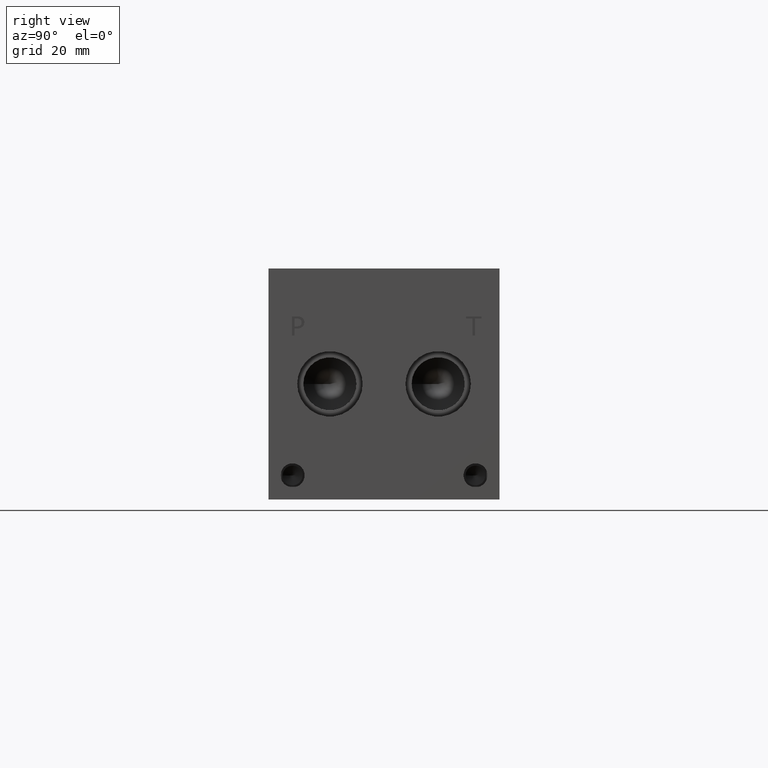
[diagram: clean part render]
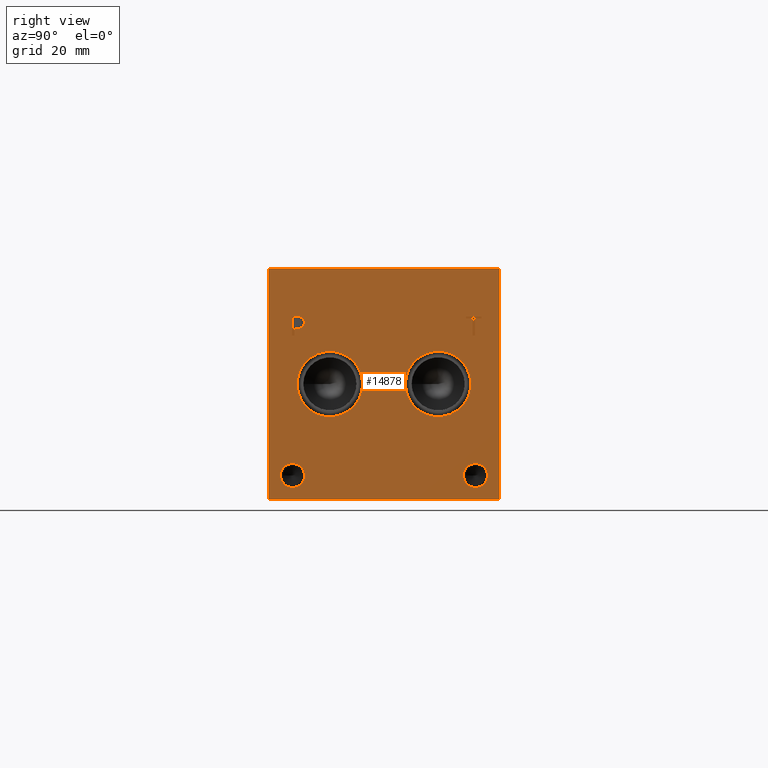
[diagram: same view with one face highlighted and labeled with its STEP entity id]
A machine part, right view. The second image highlights one B-rep face of the part: STEP entity #14878.
In plain terms, the highlighted planar face has unit normal (1, 0, 0).
Its self-contained STEP definition (entity closure, byte-faithful):
#190=CIRCLE('',#15509,10.795);
#191=CIRCLE('',#15510,10.795);
#192=CIRCLE('',#15511,10.795);
#193=CIRCLE('',#15512,10.795);
#194=CIRCLE('',#15513,3.9624);
#195=CIRCLE('',#15514,3.9624);
#196=CIRCLE('',#15515,3.9624);
#197=CIRCLE('',#15516,3.9624);
#583=FACE_BOUND('',#2615,.T.);
#584=FACE_BOUND('',#2616,.T.);
#585=FACE_BOUND('',#2617,.T.);
#586=FACE_BOUND('',#2618,.T.);
#587=FACE_BOUND('',#2619,.T.);
#588=FACE_BOUND('',#2620,.T.);
#1020=B_SPLINE_CURVE_WITH_KNOTS('',2,(#24579,#24580,#24581,#24582),
 .UNSPECIFIED.,.F.,.F.,(3,1,3),(0.,1.,2.),.UNSPECIFIED.);
#1022=B_SPLINE_CURVE_WITH_KNOTS('',2,(#24600,#24601,#24602,#24603),
 .UNSPECIFIED.,.F.,.F.,(3,1,3),(0.,1.,2.),.UNSPECIFIED.);
#1024=B_SPLINE_CURVE_WITH_KNOTS('',2,(#24649,#24650,#24651,#24652),
 .UNSPECIFIED.,.F.,.F.,(3,1,3),(0.,1.,2.),.UNSPECIFIED.);
#1026=B_SPLINE_CURVE_WITH_KNOTS('',2,(#24667,#24668,#24669,#24670),
 .UNSPECIFIED.,.F.,.F.,(3,1,3),(0.,1.,2.),.UNSPECIFIED.);
#1774=FACE_OUTER_BOUND('',#2614,.T.);
#2614=EDGE_LOOP('',(#12117,#12118,#12119,#12120));
#2615=EDGE_LOOP('',(#12121,#12122));
#2616=EDGE_LOOP('',(#12123,#12124));
#2617=EDGE_LOOP('',(#12125,#12126));
#2618=EDGE_LOOP('',(#12127,#12128));
#2619=EDGE_LOOP('',(#12129,#12130,#12131,#12132,#12133,#12134,#12135,#12136));
#2620=EDGE_LOOP('',(#12137,#12138,#12139,#12140,#12141,#12142,#12143,#12144,
#12145));
#3258=LINE('',#21563,#4615);
#4030=LINE('',#24612,#5387);
#4033=LINE('',#24618,#5390);
#4036=LINE('',#24624,#5393);
#4039=LINE('',#24630,#5396);
#4042=LINE('',#24636,#5399);
#4046=LINE('',#24678,#5403);
#4047=LINE('',#24680,#5404);
#4048=LINE('',#24681,#5405);
#4049=LINE('',#24700,#5406);
#4050=LINE('',#24702,#5407);
#4051=LINE('',#24704,#5408);
#4052=LINE('',#24706,#5409);
#4053=LINE('',#24708,#5410);
#4054=LINE('',#24710,#5411);
#4055=LINE('',#24712,#5412);
#4056=LINE('',#24713,#5413);
#4615=VECTOR('',#16568,10.);
#5387=VECTOR('',#17914,10.);
#5390=VECTOR('',#17919,10.);
#5393=VECTOR('',#17924,10.);
#5396=VECTOR('',#17929,10.);
#5399=VECTOR('',#17934,10.);
#5403=VECTOR('',#17942,10.);
#5404=VECTOR('',#17943,10.);
#5405=VECTOR('',#17944,10.);
#5406=VECTOR('',#17961,10.);
#5407=VECTOR('',#17962,10.);
#5408=VECTOR('',#17963,10.);
#5409=VECTOR('',#17964,10.);
#5410=VECTOR('',#17965,10.);
#5411=VECTOR('',#17966,10.);
#5412=VECTOR('',#17967,10.);
#5413=VECTOR('',#17968,10.);
#5990=VERTEX_POINT('',#21560);
#5991=VERTEX_POINT('',#21562);
#6631=VERTEX_POINT('',#24577);
#6632=VERTEX_POINT('',#24578);
#6635=VERTEX_POINT('',#24599);
#6637=VERTEX_POINT('',#24611);
#6639=VERTEX_POINT('',#24617);
#6641=VERTEX_POINT('',#24623);
#6643=VERTEX_POINT('',#24629);
#6645=VERTEX_POINT('',#24635);
#6647=VERTEX_POINT('',#24648);
#6649=VERTEX_POINT('',#24677);
#6650=VERTEX_POINT('',#24679);
#6651=VERTEX_POINT('',#24682);
#6652=VERTEX_POINT('',#24683);
#6653=VERTEX_POINT('',#24686);
#6654=VERTEX_POINT('',#24687);
#6655=VERTEX_POINT('',#24690);
#6656=VERTEX_POINT('',#24691);
#6657=VERTEX_POINT('',#24694);
#6658=VERTEX_POINT('',#24695);
#6659=VERTEX_POINT('',#24698);
#6660=VERTEX_POINT('',#24699);
#6661=VERTEX_POINT('',#24701);
#6662=VERTEX_POINT('',#24703);
#6663=VERTEX_POINT('',#24705);
#6664=VERTEX_POINT('',#24707);
#6665=VERTEX_POINT('',#24709);
#6666=VERTEX_POINT('',#24711);
#7613=EDGE_CURVE('',#5990,#5991,#3258,.T.);
#8564=EDGE_CURVE('',#6631,#6632,#1020,.T.);
#8568=EDGE_CURVE('',#6635,#6631,#1022,.T.);
#8571=EDGE_CURVE('',#6637,#6635,#4030,.T.);
#8574=EDGE_CURVE('',#6639,#6637,#4033,.T.);
#8577=EDGE_CURVE('',#6641,#6639,#4036,.T.);
#8580=EDGE_CURVE('',#6643,#6641,#4039,.T.);
#8583=EDGE_CURVE('',#6645,#6643,#4042,.T.);
#8586=EDGE_CURVE('',#6647,#6645,#1024,.T.);
#8589=EDGE_CURVE('',#6632,#6647,#1026,.T.);
#8591=EDGE_CURVE('',#5990,#6649,#4046,.T.);
#8592=EDGE_CURVE('',#6649,#6650,#4047,.T.);
#8593=EDGE_CURVE('',#5991,#6650,#4048,.T.);
#8594=EDGE_CURVE('',#6651,#6652,#190,.T.);
#8595=EDGE_CURVE('',#6652,#6651,#191,.T.);
#8596=EDGE_CURVE('',#6653,#6654,#192,.T.);
#8597=EDGE_CURVE('',#6654,#6653,#193,.T.);
#8598=EDGE_CURVE('',#6655,#6656,#194,.T.);
#8599=EDGE_CURVE('',#6656,#6655,#195,.T.);
#8600=EDGE_CURVE('',#6657,#6658,#196,.T.);
#8601=EDGE_CURVE('',#6658,#6657,#197,.T.);
#8602=EDGE_CURVE('',#6659,#6660,#4049,.T.);
#8603=EDGE_CURVE('',#6660,#6661,#4050,.T.);
#8604=EDGE_CURVE('',#6661,#6662,#4051,.T.);
#8605=EDGE_CURVE('',#6662,#6663,#4052,.T.);
#8606=EDGE_CURVE('',#6663,#6664,#4053,.T.);
#8607=EDGE_CURVE('',#6664,#6665,#4054,.T.);
#8608=EDGE_CURVE('',#6665,#6666,#4055,.T.);
#8609=EDGE_CURVE('',#6666,#6659,#4056,.T.);
#12117=ORIENTED_EDGE('',*,*,#8591,.T.);
#12118=ORIENTED_EDGE('',*,*,#8592,.T.);
#12119=ORIENTED_EDGE('',*,*,#8593,.F.);
#12120=ORIENTED_EDGE('',*,*,#7613,.F.);
#12121=ORIENTED_EDGE('',*,*,#8594,.T.);
#12122=ORIENTED_EDGE('',*,*,#8595,.T.);
#12123=ORIENTED_EDGE('',*,*,#8596,.T.);
#12124=ORIENTED_EDGE('',*,*,#8597,.T.);
#12125=ORIENTED_EDGE('',*,*,#8598,.T.);
#12126=ORIENTED_EDGE('',*,*,#8599,.T.);
#12127=ORIENTED_EDGE('',*,*,#8600,.T.);
#12128=ORIENTED_EDGE('',*,*,#8601,.T.);
#12129=ORIENTED_EDGE('',*,*,#8602,.T.);
#12130=ORIENTED_EDGE('',*,*,#8603,.T.);
#12131=ORIENTED_EDGE('',*,*,#8604,.T.);
#12132=ORIENTED_EDGE('',*,*,#8605,.T.);
#12133=ORIENTED_EDGE('',*,*,#8606,.T.);
#12134=ORIENTED_EDGE('',*,*,#8607,.T.);
#12135=ORIENTED_EDGE('',*,*,#8608,.T.);
#12136=ORIENTED_EDGE('',*,*,#8609,.T.);
#12137=ORIENTED_EDGE('',*,*,#8564,.T.);
#12138=ORIENTED_EDGE('',*,*,#8589,.T.);
#12139=ORIENTED_EDGE('',*,*,#8586,.T.);
#12140=ORIENTED_EDGE('',*,*,#8583,.T.);
#12141=ORIENTED_EDGE('',*,*,#8580,.T.);
#12142=ORIENTED_EDGE('',*,*,#8577,.T.);
#12143=ORIENTED_EDGE('',*,*,#8574,.T.);
#12144=ORIENTED_EDGE('',*,*,#8571,.T.);
#12145=ORIENTED_EDGE('',*,*,#8568,.T.);
#13710=PLANE('',#15508);
#14878=ADVANCED_FACE('',(#1774,#583,#584,#585,#586,#587,#588),#13710,.T.);
#15508=AXIS2_PLACEMENT_3D('',#24676,#17940,#17941);
#15509=AXIS2_PLACEMENT_3D('',#24684,#17945,#17946);
#15510=AXIS2_PLACEMENT_3D('',#24685,#17947,#17948);
#15511=AXIS2_PLACEMENT_3D('',#24688,#17949,#17950);
#15512=AXIS2_PLACEMENT_3D('',#24689,#17951,#17952);
#15513=AXIS2_PLACEMENT_3D('',#24692,#17953,#17954);
#15514=AXIS2_PLACEMENT_3D('',#24693,#17955,#17956);
#15515=AXIS2_PLACEMENT_3D('',#24696,#17957,#17958);
#15516=AXIS2_PLACEMENT_3D('',#24697,#17959,#17960);
#16568=DIRECTION('',(0.,0.,1.));
#17914=DIRECTION('',(0.,1.,0.));
#17919=DIRECTION('',(0.,0.,1.));
#17924=DIRECTION('',(0.,-1.,0.));
#17929=DIRECTION('',(0.,0.,-1.));
#17934=DIRECTION('',(0.,-1.,0.));
#17940=DIRECTION('center_axis',(1.,0.,0.));
#17941=DIRECTION('ref_axis',(0.,1.,0.));
#17942=DIRECTION('',(0.,1.,0.));
#17943=DIRECTION('',(0.,0.,1.));
#17944=DIRECTION('',(0.,1.,0.));
#17945=DIRECTION('center_axis',(-1.,0.,0.));
#17946=DIRECTION('ref_axis',(0.,1.,0.));
#17947=DIRECTION('center_axis',(-1.,0.,0.));
#17948=DIRECTION('ref_axis',(0.,1.,0.));
#17949=DIRECTION('center_axis',(-1.,0.,0.));
#17950=DIRECTION('ref_axis',(0.,1.,0.));
#17951=DIRECTION('center_axis',(-1.,0.,0.));
#17952=DIRECTION('ref_axis',(0.,1.,0.));
#17953=DIRECTION('center_axis',(-1.,0.,0.));
#17954=DIRECTION('ref_axis',(0.,1.,0.));
#17955=DIRECTION('center_axis',(-1.,0.,0.));
#17956=DIRECTION('ref_axis',(0.,1.,0.));
#17957=DIRECTION('center_axis',(-1.,0.,0.));
#17958=DIRECTION('ref_axis',(0.,1.,0.));
#17959=DIRECTION('center_axis',(-1.,0.,0.));
#17960=DIRECTION('ref_axis',(0.,1.,0.));
#17961=DIRECTION('',(0.,-1.,0.));
#17962=DIRECTION('',(0.,0.,1.));
#17963=DIRECTION('',(0.,-1.,0.));
#17964=DIRECTION('',(0.,0.,1.));
#17965=DIRECTION('',(0.,1.,0.));
#17966=DIRECTION('',(0.,0.,-1.));
#17967=DIRECTION('',(0.,-1.,0.));
#17968=DIRECTION('',(0.,0.,-1.));
#21560=CARTESIAN_POINT('',(215.9,0.,0.));
#21562=CARTESIAN_POINT('',(215.9,0.,76.2));
#21563=CARTESIAN_POINT('',(215.9,0.,0.));
#24577=CARTESIAN_POINT('',(215.9,11.0443172023594,59.9287681439707));
#24578=CARTESIAN_POINT('',(215.9,11.800759654532,58.410737372604));
#24579=CARTESIAN_POINT('Ctrl Pts',(215.9,11.0443172023594,59.9287681439707));
#24580=CARTESIAN_POINT('Ctrl Pts',(215.9,11.3993820268486,59.6869123939564));
#24581=CARTESIAN_POINT('Ctrl Pts',(215.9,11.800759654532,58.9407616758269));
#24582=CARTESIAN_POINT('Ctrl Pts',(215.9,11.800759654532,58.410737372604));
#24599=CARTESIAN_POINT('',(215.9,9.3822021543883,60.3249999046326));
#24600=CARTESIAN_POINT('Ctrl Pts',(215.9,9.3822021543883,60.3249999046326));
#24601=CARTESIAN_POINT('Ctrl Pts',(215.9,9.94824752676236,60.3249999046326));
#24602=CARTESIAN_POINT('Ctrl Pts',(215.9,10.740711048086,60.1397486918556));
#24603=CARTESIAN_POINT('Ctrl Pts',(215.9,11.0443172023594,59.9287681439707));
#24611=CARTESIAN_POINT('',(215.9,7.78698337769779,60.3249999046326));
#24612=CARTESIAN_POINT('',(215.9,3.89349168884889,60.3249999046326));
#24617=CARTESIAN_POINT('',(215.9,7.78698337769779,53.975));
#24618=CARTESIAN_POINT('',(215.9,7.78698337769779,26.9875));
#24623=CARTESIAN_POINT('',(215.9,8.63090556923729,53.975));
#24624=CARTESIAN_POINT('',(215.9,4.31545278461864,53.975));
#24629=CARTESIAN_POINT('',(215.9,8.63090556923729,56.3420988299279));
#24630=CARTESIAN_POINT('',(215.9,8.63090556923729,28.1710494149639));
#24635=CARTESIAN_POINT('',(215.9,9.34618108523723,56.3420988299279));
#24636=CARTESIAN_POINT('',(215.9,4.67309054261861,56.3420988299279));
#24648=CARTESIAN_POINT('',(215.9,11.2450060162011,57.0007698086904));
#24649=CARTESIAN_POINT('Ctrl Pts',(215.9,11.2450060162011,57.0007698086904));
#24650=CARTESIAN_POINT('Ctrl Pts',(215.9,10.9156705268198,56.6765801863307));
#24651=CARTESIAN_POINT('Ctrl Pts',(215.9,10.0254355320861,56.3420988299279));
#24652=CARTESIAN_POINT('Ctrl Pts',(215.9,9.34618108523723,56.3420988299279));
#24667=CARTESIAN_POINT('Ctrl Pts',(215.9,11.800759654532,58.410737372604));
#24668=CARTESIAN_POINT('Ctrl Pts',(215.9,11.800759654532,57.9990680108774));
#24669=CARTESIAN_POINT('Ctrl Pts',(215.9,11.5074452343018,57.2580631597695));
#24670=CARTESIAN_POINT('Ctrl Pts',(215.9,11.2450060162011,57.0007698086904));
#24676=CARTESIAN_POINT('Origin',(215.9,0.,0.));
#24677=CARTESIAN_POINT('',(215.9,76.2,0.));
#24678=CARTESIAN_POINT('',(215.9,0.,0.));
#24679=CARTESIAN_POINT('',(215.9,76.2,76.2));
#24680=CARTESIAN_POINT('',(215.9,76.2,0.));
#24681=CARTESIAN_POINT('',(215.9,0.,76.2));
#24682=CARTESIAN_POINT('',(215.9,31.0388,38.1));
#24683=CARTESIAN_POINT('',(215.9,9.4488,38.1));
#24684=CARTESIAN_POINT('Origin',(215.9,20.2438,38.1));
#24685=CARTESIAN_POINT('Origin',(215.9,20.2438,38.1));
#24686=CARTESIAN_POINT('',(215.9,66.7512,38.1));
#24687=CARTESIAN_POINT('',(215.9,45.1612,38.1));
#24688=CARTESIAN_POINT('Origin',(215.9,55.9562,38.1));
#24689=CARTESIAN_POINT('Origin',(215.9,55.9562,38.1));
#24690=CARTESIAN_POINT('',(215.9,11.8872,7.9248));
#24691=CARTESIAN_POINT('',(215.9,3.9624,7.9248));
#24692=CARTESIAN_POINT('Origin',(215.9,7.9248,7.9248));
#24693=CARTESIAN_POINT('Origin',(215.9,7.9248,7.9248));
#24694=CARTESIAN_POINT('',(215.9,72.2376,7.9248));
#24695=CARTESIAN_POINT('',(215.9,64.3128,7.9248));
#24696=CARTESIAN_POINT('Origin',(215.9,68.2752,7.9248));
#24697=CARTESIAN_POINT('Origin',(215.9,68.2752,7.9248));
#24698=CARTESIAN_POINT('',(215.9,68.056665271453,53.975));
#24699=CARTESIAN_POINT('',(215.9,67.2127430799135,53.975));
#24700=CARTESIAN_POINT('',(215.9,34.0283326357265,53.975));
#24701=CARTESIAN_POINT('',(215.9,67.2127430799135,59.5737033194816));
#24702=CARTESIAN_POINT('',(215.9,67.2127430799135,26.9875));
#24703=CARTESIAN_POINT('',(215.9,65.0823541329784,59.5737033194816));
#24704=CARTESIAN_POINT('',(215.9,33.6063715399567,59.5737033194816));
#24705=CARTESIAN_POINT('',(215.9,65.0823541329784,60.3249999046326));
#24706=CARTESIAN_POINT('',(215.9,65.0823541329784,29.7868516597408));
#24707=CARTESIAN_POINT('',(215.9,70.1870542183881,60.3249999046326));
#24708=CARTESIAN_POINT('',(215.9,32.5411770664892,60.3249999046326));
#24709=CARTESIAN_POINT('',(215.9,70.1870542183881,59.5737033194816));
#24710=CARTESIAN_POINT('',(215.9,70.1870542183881,30.1624999523163));
#24711=CARTESIAN_POINT('',(215.9,68.056665271453,59.5737033194816));
#24712=CARTESIAN_POINT('',(215.9,35.093527109194,59.5737033194816));
#24713=CARTESIAN_POINT('',(215.9,68.056665271453,29.7868516597408));